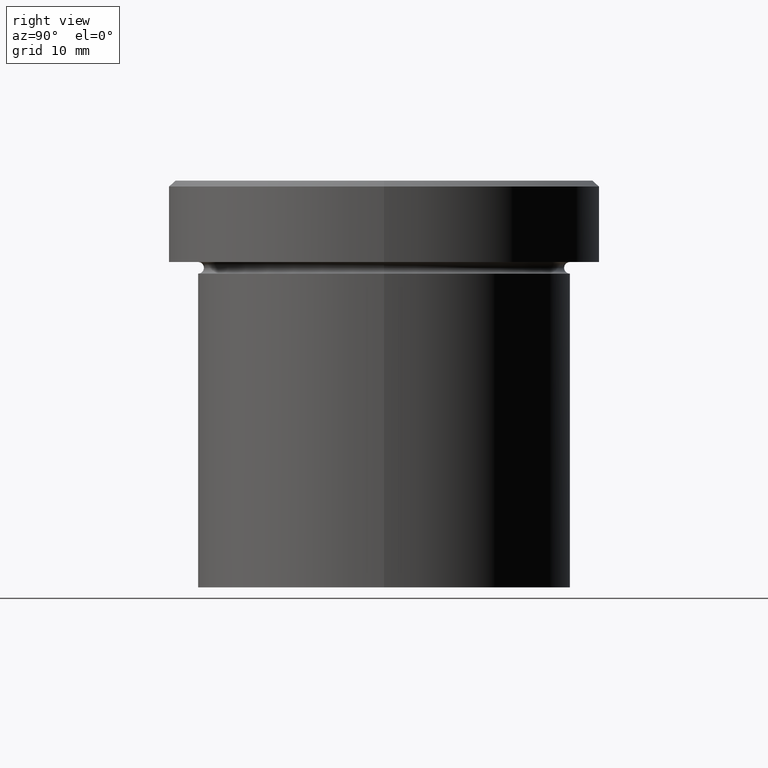
[diagram: clean part render]
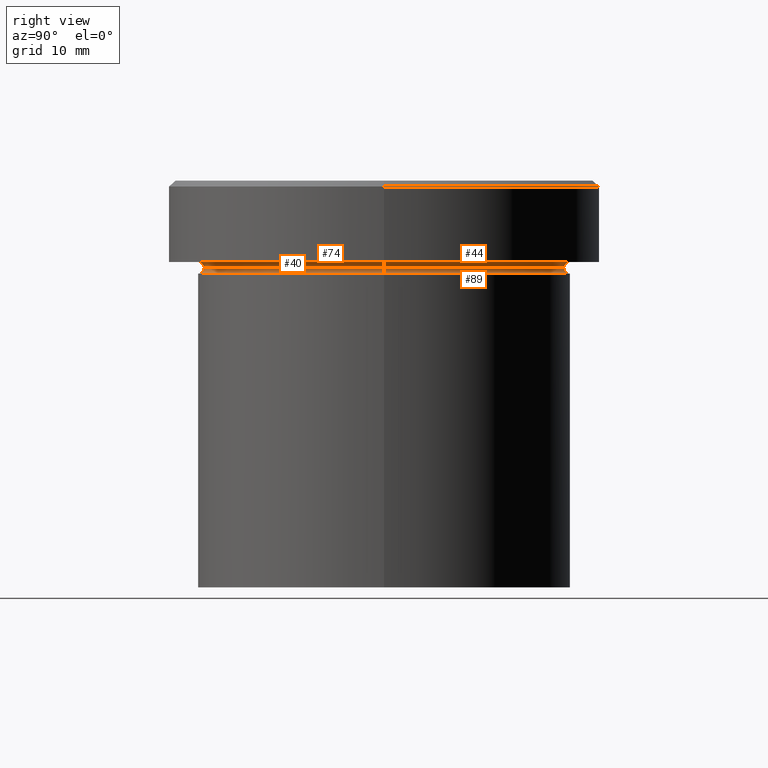
[diagram: same view with one multi-face feature highlighted, each face labeled with its STEP entity id]
A machine part, right view. The highlighted faces form ONE feature: a constant-radius fillet chain: 4 tangent blend faces with common blend radius 0.5 mm. The faces share edges in the B-rep.
Their STEP definitions:
[1] entity #40 (Torus):
#9 = VERTEX_POINT ( 'NONE', #338 ) ;
#20 = CARTESIAN_POINT ( 'NONE',  ( 0.000000000000000000, 0.000000000000000000, -7.500000000000000000 ) ) ;
#24 = DIRECTION ( 'NONE',  ( 0.000000000000000000, 0.000000000000000000, -1.000000000000000000 ) ) ;
#25 = AXIS2_PLACEMENT_3D ( 'NONE', #145, #81, #339 ) ;
#40 = ADVANCED_FACE ( 'NONE', ( #346 ), #391, .F. ) ;
#49 = DIRECTION ( 'NONE',  ( -0.000000000000000000, -1.000000000000000000, -0.000000000000000000 ) ) ;
#53 = CARTESIAN_POINT ( 'NONE',  ( 15.50000000000000000, 0.000000000000000000, -7.500000000000000000 ) ) ;
#57 = EDGE_CURVE ( 'NONE', #289, #65, #146, .T. ) ;
#63 = VERTEX_POINT ( 'NONE', #342 ) ;
#65 = VERTEX_POINT ( 'NONE', #53 ) ;
#70 = EDGE_CURVE ( 'NONE', #289, #63, #350, .T. ) ;
#79 = CIRCLE ( 'NONE', #127, 16.00000000000000000 ) ;
#81 = DIRECTION ( 'NONE',  ( -1.224646799147353207E-16, 1.000000000000000000, 0.000000000000000000 ) ) ;
#90 = CARTESIAN_POINT ( 'NONE',  ( 0.000000000000000000, 0.000000000000000000, -7.500000000000000000 ) ) ;
#99 = ORIENTED_EDGE ( 'NONE', *, *, #143, .T. ) ;
#108 = CARTESIAN_POINT ( 'NONE',  ( 0.000000000000000000, 0.000000000000000000, -6.999999999999999112 ) ) ;
#127 = AXIS2_PLACEMENT_3D ( 'NONE', #108, #275, #134 ) ;
#134 = DIRECTION ( 'NONE',  ( -1.000000000000000000, 0.000000000000000000, 0.000000000000000000 ) ) ;
#143 = EDGE_CURVE ( 'NONE', #65, #9, #269, .T. ) ;
#145 = CARTESIAN_POINT ( 'NONE',  ( 16.00000000000000000, 1.959434878635765131E-15, -7.500000000000000000 ) ) ;
#146 = CIRCLE ( 'NONE', #335, 15.50000000000000000 ) ;
#149 = DIRECTION ( 'NONE',  ( -0.000000000000000000, -0.000000000000000000, 1.000000000000000000 ) ) ;
#151 = DIRECTION ( 'NONE',  ( -1.000000000000000000, 0.000000000000000000, 0.000000000000000000 ) ) ;
#172 = CARTESIAN_POINT ( 'NONE',  ( -15.50000000000000000, 1.928818708657081344E-15, -7.500000000000000000 ) ) ;
#183 = CARTESIAN_POINT ( 'NONE',  ( -16.00000000000000000, 0.000000000000000000, -7.500000000000000000 ) ) ;
#186 = DIRECTION ( 'NONE',  ( 0.000000000000000000, 0.000000000000000000, -1.000000000000000000 ) ) ;
#199 = ORIENTED_EDGE ( 'NONE', *, *, #57, .T. ) ;
#217 = AXIS2_PLACEMENT_3D ( 'NONE', #183, #49, #186 ) ;
#236 = ORIENTED_EDGE ( 'NONE', *, *, #337, .F. ) ;
#250 = AXIS2_PLACEMENT_3D ( 'NONE', #90, #24, #151 ) ;
#269 = CIRCLE ( 'NONE', #25, 0.5000000000000004441 ) ;
#275 = DIRECTION ( 'NONE',  ( -0.000000000000000000, -0.000000000000000000, 1.000000000000000000 ) ) ;
#289 = VERTEX_POINT ( 'NONE', #172 ) ;
#294 = EDGE_LOOP ( 'NONE', ( #199, #99, #236, #353 ) ) ;
#311 = DIRECTION ( 'NONE',  ( 1.000000000000000000, 0.000000000000000000, 0.000000000000000000 ) ) ;
#335 = AXIS2_PLACEMENT_3D ( 'NONE', #20, #149, #311 ) ;
#337 = EDGE_CURVE ( 'NONE', #63, #9, #79, .T. ) ;
#338 = CARTESIAN_POINT ( 'NONE',  ( 16.00000000000000000, 1.959434878635765131E-15, -6.999999999999999112 ) ) ;
#339 = DIRECTION ( 'NONE',  ( -1.000000000000000000, -1.224646799147349509E-16, 0.000000000000000000 ) ) ;
#342 = CARTESIAN_POINT ( 'NONE',  ( -16.00000000000000000, 0.000000000000000000, -6.999999999999999112 ) ) ;
#346 = FACE_OUTER_BOUND ( 'NONE', #294, .T. ) ;
#350 = CIRCLE ( 'NONE', #217, 0.5000000000000004441 ) ;
#353 = ORIENTED_EDGE ( 'NONE', *, *, #70, .F. ) ;
#391 = TOROIDAL_SURFACE ( 'NONE', #250, 16.00000000000000000, 0.5000000000000000000 ) ;
[2] entity #44 (Torus):
#9 = VERTEX_POINT ( 'NONE', #338 ) ;
#25 = AXIS2_PLACEMENT_3D ( 'NONE', #145, #81, #339 ) ;
#34 = TOROIDAL_SURFACE ( 'NONE', #158, 16.00000000000000000, 0.5000000000000000000 ) ;
#37 = ORIENTED_EDGE ( 'NONE', *, *, #277, .T. ) ;
#41 = DIRECTION ( 'NONE',  ( -0.000000000000000000, -0.000000000000000000, 1.000000000000000000 ) ) ;
#44 = ADVANCED_FACE ( 'NONE', ( #116 ), #34, .F. ) ;
#49 = DIRECTION ( 'NONE',  ( -0.000000000000000000, -1.000000000000000000, -0.000000000000000000 ) ) ;
#53 = CARTESIAN_POINT ( 'NONE',  ( 15.50000000000000000, 0.000000000000000000, -7.500000000000000000 ) ) ;
#63 = VERTEX_POINT ( 'NONE', #342 ) ;
#65 = VERTEX_POINT ( 'NONE', #53 ) ;
#70 = EDGE_CURVE ( 'NONE', #289, #63, #350, .T. ) ;
#71 = DIRECTION ( 'NONE',  ( 1.000000000000000000, 0.000000000000000000, 0.000000000000000000 ) ) ;
#73 = CIRCLE ( 'NONE', #260, 15.50000000000000000 ) ;
#76 = DIRECTION ( 'NONE',  ( -0.000000000000000000, -0.000000000000000000, 1.000000000000000000 ) ) ;
#81 = DIRECTION ( 'NONE',  ( -1.224646799147353207E-16, 1.000000000000000000, 0.000000000000000000 ) ) ;
#84 = DIRECTION ( 'NONE',  ( -1.000000000000000000, 0.000000000000000000, 0.000000000000000000 ) ) ;
#112 = CIRCLE ( 'NONE', #251, 16.00000000000000000 ) ;
#116 = FACE_OUTER_BOUND ( 'NONE', #201, .T. ) ;
#130 = ORIENTED_EDGE ( 'NONE', *, *, #143, .F. ) ;
#143 = EDGE_CURVE ( 'NONE', #65, #9, #269, .T. ) ;
#145 = CARTESIAN_POINT ( 'NONE',  ( 16.00000000000000000, 1.959434878635765131E-15, -7.500000000000000000 ) ) ;
#158 = AXIS2_PLACEMENT_3D ( 'NONE', #348, #375, #84 ) ;
#172 = CARTESIAN_POINT ( 'NONE',  ( -15.50000000000000000, 1.928818708657081344E-15, -7.500000000000000000 ) ) ;
#183 = CARTESIAN_POINT ( 'NONE',  ( -16.00000000000000000, 0.000000000000000000, -7.500000000000000000 ) ) ;
#186 = DIRECTION ( 'NONE',  ( 0.000000000000000000, 0.000000000000000000, -1.000000000000000000 ) ) ;
#201 = EDGE_LOOP ( 'NONE', ( #130, #37, #266, #329 ) ) ;
#217 = AXIS2_PLACEMENT_3D ( 'NONE', #183, #49, #186 ) ;
#251 = AXIS2_PLACEMENT_3D ( 'NONE', #368, #76, #393 ) ;
#259 = EDGE_CURVE ( 'NONE', #9, #63, #112, .T. ) ;
#260 = AXIS2_PLACEMENT_3D ( 'NONE', #331, #41, #71 ) ;
#266 = ORIENTED_EDGE ( 'NONE', *, *, #70, .T. ) ;
#269 = CIRCLE ( 'NONE', #25, 0.5000000000000004441 ) ;
#277 = EDGE_CURVE ( 'NONE', #65, #289, #73, .T. ) ;
#289 = VERTEX_POINT ( 'NONE', #172 ) ;
#329 = ORIENTED_EDGE ( 'NONE', *, *, #259, .F. ) ;
#331 = CARTESIAN_POINT ( 'NONE',  ( 0.000000000000000000, 0.000000000000000000, -7.500000000000000000 ) ) ;
#338 = CARTESIAN_POINT ( 'NONE',  ( 16.00000000000000000, 1.959434878635765131E-15, -6.999999999999999112 ) ) ;
#339 = DIRECTION ( 'NONE',  ( -1.000000000000000000, -1.224646799147349509E-16, 0.000000000000000000 ) ) ;
#342 = CARTESIAN_POINT ( 'NONE',  ( -16.00000000000000000, 0.000000000000000000, -6.999999999999999112 ) ) ;
#348 = CARTESIAN_POINT ( 'NONE',  ( 0.000000000000000000, 0.000000000000000000, -7.500000000000000000 ) ) ;
#350 = CIRCLE ( 'NONE', #217, 0.5000000000000004441 ) ;
#368 = CARTESIAN_POINT ( 'NONE',  ( 0.000000000000000000, 0.000000000000000000, -6.999999999999999112 ) ) ;
#375 = DIRECTION ( 'NONE',  ( 0.000000000000000000, 0.000000000000000000, -1.000000000000000000 ) ) ;
#393 = DIRECTION ( 'NONE',  ( -1.000000000000000000, 0.000000000000000000, 0.000000000000000000 ) ) ;
[3] entity #89 (Torus):
#30 = ORIENTED_EDGE ( 'NONE', *, *, #167, .T. ) ;
#32 = DIRECTION ( 'NONE',  ( -1.000000000000000000, 1.224646799147349509E-16, 0.000000000000000000 ) ) ;
#39 = ORIENTED_EDGE ( 'NONE', *, *, #277, .F. ) ;
#41 = DIRECTION ( 'NONE',  ( -0.000000000000000000, -0.000000000000000000, 1.000000000000000000 ) ) ;
#51 = FACE_OUTER_BOUND ( 'NONE', #358, .T. ) ;
#53 = CARTESIAN_POINT ( 'NONE',  ( 15.50000000000000000, 0.000000000000000000, -7.500000000000000000 ) ) ;
#56 = CARTESIAN_POINT ( 'NONE',  ( 16.00000000000000000, 0.000000000000000000, -8.000000000000000000 ) ) ;
#60 = VERTEX_POINT ( 'NONE', #56 ) ;
#61 = VERTEX_POINT ( 'NONE', #222 ) ;
#64 = CARTESIAN_POINT ( 'NONE',  ( -16.00000000000000000, 1.959434878635765131E-15, -7.500000000000000000 ) ) ;
#65 = VERTEX_POINT ( 'NONE', #53 ) ;
#71 = DIRECTION ( 'NONE',  ( 1.000000000000000000, 0.000000000000000000, 0.000000000000000000 ) ) ;
#73 = CIRCLE ( 'NONE', #260, 15.50000000000000000 ) ;
#86 = EDGE_CURVE ( 'NONE', #60, #61, #267, .T. ) ;
#89 = ADVANCED_FACE ( 'NONE', ( #51 ), #359, .F. ) ;
#91 = DIRECTION ( 'NONE',  ( 1.224646799147353207E-16, 1.000000000000000000, 0.000000000000000000 ) ) ;
#118 = CARTESIAN_POINT ( 'NONE',  ( 0.000000000000000000, 0.000000000000000000, -8.000000000000000000 ) ) ;
#121 = AXIS2_PLACEMENT_3D ( 'NONE', #118, #317, #246 ) ;
#131 = DIRECTION ( 'NONE',  ( 0.000000000000000000, 0.000000000000000000, -1.000000000000000000 ) ) ;
#160 = CARTESIAN_POINT ( 'NONE',  ( 16.00000000000000000, 0.000000000000000000, -7.500000000000000000 ) ) ;
#166 = AXIS2_PLACEMENT_3D ( 'NONE', #160, #327, #131 ) ;
#167 = EDGE_CURVE ( 'NONE', #65, #60, #206, .T. ) ;
#172 = CARTESIAN_POINT ( 'NONE',  ( -15.50000000000000000, 1.928818708657081344E-15, -7.500000000000000000 ) ) ;
#206 = CIRCLE ( 'NONE', #166, 0.5000000000000004441 ) ;
#210 = AXIS2_PLACEMENT_3D ( 'NONE', #285, #244, #371 ) ;
#215 = EDGE_CURVE ( 'NONE', #289, #61, #305, .T. ) ;
#218 = AXIS2_PLACEMENT_3D ( 'NONE', #64, #91, #32 ) ;
#222 = CARTESIAN_POINT ( 'NONE',  ( -16.00000000000000000, 1.959434878635765131E-15, -8.000000000000000000 ) ) ;
#223 = ORIENTED_EDGE ( 'NONE', *, *, #215, .F. ) ;
#244 = DIRECTION ( 'NONE',  ( -0.000000000000000000, -0.000000000000000000, 1.000000000000000000 ) ) ;
#246 = DIRECTION ( 'NONE',  ( 1.000000000000000000, 0.000000000000000000, 0.000000000000000000 ) ) ;
#260 = AXIS2_PLACEMENT_3D ( 'NONE', #331, #41, #71 ) ;
#267 = CIRCLE ( 'NONE', #121, 16.00000000000000000 ) ;
#277 = EDGE_CURVE ( 'NONE', #65, #289, #73, .T. ) ;
#285 = CARTESIAN_POINT ( 'NONE',  ( 0.000000000000000000, 0.000000000000000000, -7.500000000000000000 ) ) ;
#289 = VERTEX_POINT ( 'NONE', #172 ) ;
#305 = CIRCLE ( 'NONE', #218, 0.5000000000000004441 ) ;
#317 = DIRECTION ( 'NONE',  ( -0.000000000000000000, -0.000000000000000000, 1.000000000000000000 ) ) ;
#327 = DIRECTION ( 'NONE',  ( 0.000000000000000000, -1.000000000000000000, 0.000000000000000000 ) ) ;
#328 = ORIENTED_EDGE ( 'NONE', *, *, #86, .T. ) ;
#331 = CARTESIAN_POINT ( 'NONE',  ( 0.000000000000000000, 0.000000000000000000, -7.500000000000000000 ) ) ;
#358 = EDGE_LOOP ( 'NONE', ( #223, #39, #30, #328 ) ) ;
#359 = TOROIDAL_SURFACE ( 'NONE', #210, 16.00000000000000000, 0.5000000000000000000 ) ;
#371 = DIRECTION ( 'NONE',  ( 1.000000000000000000, 0.000000000000000000, 0.000000000000000000 ) ) ;
[4] entity #74 (Torus):
#6 = EDGE_LOOP ( 'NONE', ( #105, #142, #195, #390 ) ) ;
#20 = CARTESIAN_POINT ( 'NONE',  ( 0.000000000000000000, 0.000000000000000000, -7.500000000000000000 ) ) ;
#32 = DIRECTION ( 'NONE',  ( -1.000000000000000000, 1.224646799147349509E-16, 0.000000000000000000 ) ) ;
#53 = CARTESIAN_POINT ( 'NONE',  ( 15.50000000000000000, 0.000000000000000000, -7.500000000000000000 ) ) ;
#56 = CARTESIAN_POINT ( 'NONE',  ( 16.00000000000000000, 0.000000000000000000, -8.000000000000000000 ) ) ;
#57 = EDGE_CURVE ( 'NONE', #289, #65, #146, .T. ) ;
#60 = VERTEX_POINT ( 'NONE', #56 ) ;
#61 = VERTEX_POINT ( 'NONE', #222 ) ;
#64 = CARTESIAN_POINT ( 'NONE',  ( -16.00000000000000000, 1.959434878635765131E-15, -7.500000000000000000 ) ) ;
#65 = VERTEX_POINT ( 'NONE', #53 ) ;
#66 = TOROIDAL_SURFACE ( 'NONE', #304, 16.00000000000000000, 0.5000000000000000000 ) ;
#74 = ADVANCED_FACE ( 'NONE', ( #283 ), #66, .F. ) ;
#75 = DIRECTION ( 'NONE',  ( 1.000000000000000000, 0.000000000000000000, 0.000000000000000000 ) ) ;
#80 = CARTESIAN_POINT ( 'NONE',  ( 0.000000000000000000, 0.000000000000000000, -7.500000000000000000 ) ) ;
#91 = DIRECTION ( 'NONE',  ( 1.224646799147353207E-16, 1.000000000000000000, 0.000000000000000000 ) ) ;
#104 = CARTESIAN_POINT ( 'NONE',  ( 0.000000000000000000, 0.000000000000000000, -8.000000000000000000 ) ) ;
#105 = ORIENTED_EDGE ( 'NONE', *, *, #57, .F. ) ;
#131 = DIRECTION ( 'NONE',  ( 0.000000000000000000, 0.000000000000000000, -1.000000000000000000 ) ) ;
#142 = ORIENTED_EDGE ( 'NONE', *, *, #215, .T. ) ;
#146 = CIRCLE ( 'NONE', #335, 15.50000000000000000 ) ;
#149 = DIRECTION ( 'NONE',  ( -0.000000000000000000, -0.000000000000000000, 1.000000000000000000 ) ) ;
#160 = CARTESIAN_POINT ( 'NONE',  ( 16.00000000000000000, 0.000000000000000000, -7.500000000000000000 ) ) ;
#166 = AXIS2_PLACEMENT_3D ( 'NONE', #160, #327, #131 ) ;
#167 = EDGE_CURVE ( 'NONE', #65, #60, #206, .T. ) ;
#172 = CARTESIAN_POINT ( 'NONE',  ( -15.50000000000000000, 1.928818708657081344E-15, -7.500000000000000000 ) ) ;
#195 = ORIENTED_EDGE ( 'NONE', *, *, #388, .T. ) ;
#206 = CIRCLE ( 'NONE', #166, 0.5000000000000004441 ) ;
#215 = EDGE_CURVE ( 'NONE', #289, #61, #305, .T. ) ;
#218 = AXIS2_PLACEMENT_3D ( 'NONE', #64, #91, #32 ) ;
#222 = CARTESIAN_POINT ( 'NONE',  ( -16.00000000000000000, 1.959434878635765131E-15, -8.000000000000000000 ) ) ;
#239 = DIRECTION ( 'NONE',  ( -0.000000000000000000, -0.000000000000000000, 1.000000000000000000 ) ) ;
#249 = DIRECTION ( 'NONE',  ( -0.000000000000000000, -0.000000000000000000, 1.000000000000000000 ) ) ;
#254 = DIRECTION ( 'NONE',  ( 1.000000000000000000, 0.000000000000000000, 0.000000000000000000 ) ) ;
#283 = FACE_OUTER_BOUND ( 'NONE', #6, .T. ) ;
#289 = VERTEX_POINT ( 'NONE', #172 ) ;
#292 = CIRCLE ( 'NONE', #343, 16.00000000000000000 ) ;
#304 = AXIS2_PLACEMENT_3D ( 'NONE', #80, #249, #254 ) ;
#305 = CIRCLE ( 'NONE', #218, 0.5000000000000004441 ) ;
#311 = DIRECTION ( 'NONE',  ( 1.000000000000000000, 0.000000000000000000, 0.000000000000000000 ) ) ;
#327 = DIRECTION ( 'NONE',  ( 0.000000000000000000, -1.000000000000000000, 0.000000000000000000 ) ) ;
#335 = AXIS2_PLACEMENT_3D ( 'NONE', #20, #149, #311 ) ;
#343 = AXIS2_PLACEMENT_3D ( 'NONE', #104, #239, #75 ) ;
#388 = EDGE_CURVE ( 'NONE', #61, #60, #292, .T. ) ;
#390 = ORIENTED_EDGE ( 'NONE', *, *, #167, .F. ) ;